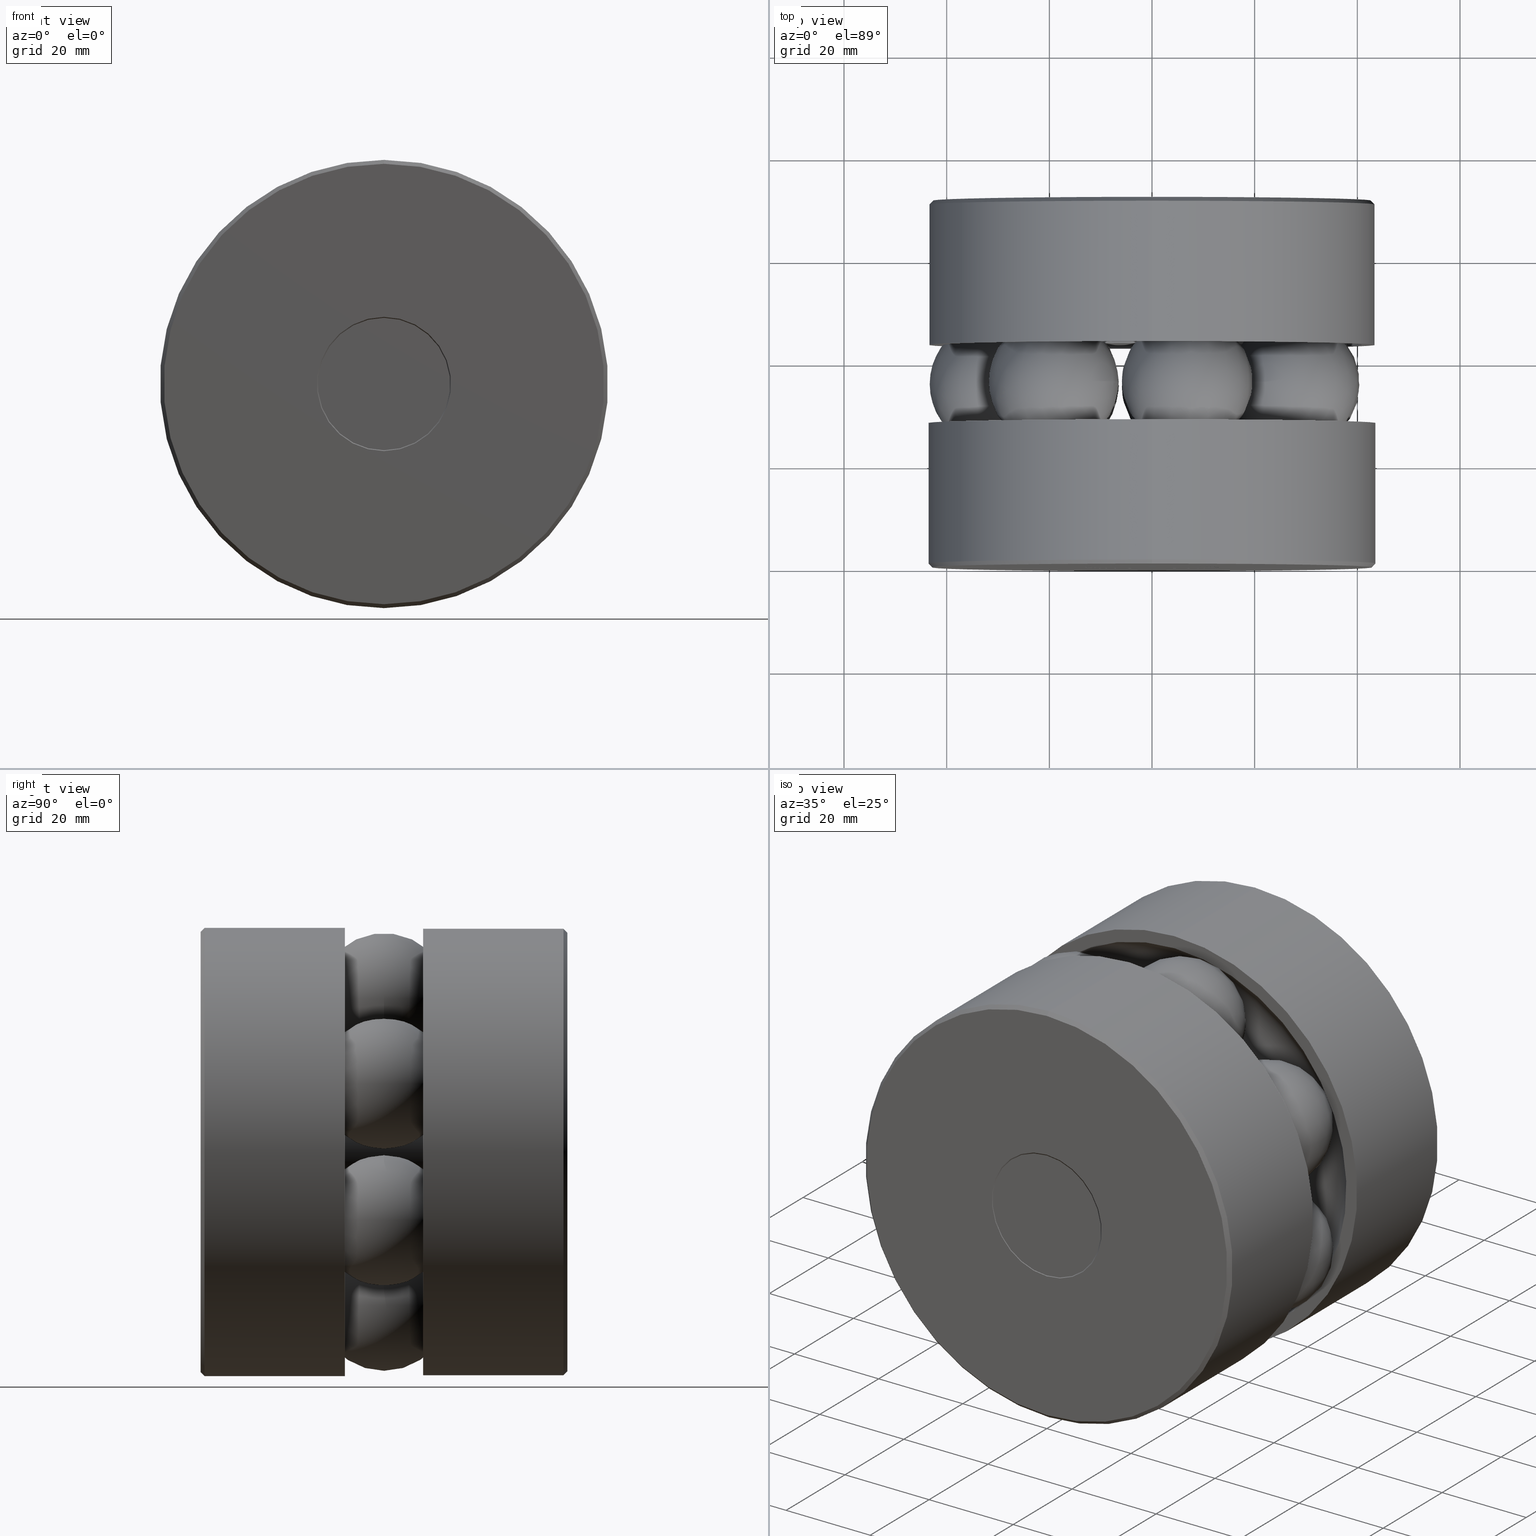
[diagram: canonical four-view strip — front | top / right | iso, engineering-drawing reading convention]
A machine part, canonical four-view strip (front | top / right | iso — engineering-drawing reading convention). The complete STEP part file that produces these views, byte-faithful:
ISO-10303-21;
HEADER;
FILE_DESCRIPTION (( 'STEP AP203' ),
    '1' );
FILE_NAME ('T-114RG_T-114RG-3007.step',
    '2016-02-04T16:15:54',
    ( '' ),
    ( '' ),
    'SwSTEP 2.0',
    'SolidWorks 2016',
    '' );
FILE_SCHEMA (( 'CONFIG_CONTROL_DESIGN' ));
ENDSEC;

DATA;
#1 = FACE_OUTER_BOUND ( 'NONE', #273, .T. ) ;
#2 = CIRCLE ( 'NONE', #429, 0.8100000000000009400 ) ;
#3 = CC_DESIGN_PERSON_AND_ORGANIZATION_ASSIGNMENT ( #330, #520, ( #384 ) ) ;
#4 =( CONVERSION_BASED_UNIT ( 'INCH', #363 ) LENGTH_UNIT ( ) NAMED_UNIT ( #469 ) );
#5 = MANIFOLD_SOLID_BREP ( 'Revolve3', #189 ) ;
#6 = CLOSED_SHELL ( 'NONE', ( #447 ) ) ;
#7 = EDGE_LOOP ( 'NONE', ( #322 ) ) ;
#8 = CARTESIAN_POINT ( 'NONE',  ( 0.0000000000000000000, 0.0000000000000000000, 0.0000000000000000000 ) ) ;
#9 = ADVANCED_FACE ( 'NONE', ( #1, #312 ), #64, .T. ) ;
#10 = PERSON_AND_ORGANIZATION ( #460, #439 ) ;
#11 =( LENGTH_UNIT ( ) NAMED_UNIT ( * ) SI_UNIT ( $, .METRE. ) );
#12 = CIRCLE ( 'NONE', #471, 1.609999999999999700 ) ;
#13 = ORIENTED_EDGE ( 'NONE', *, *, #27, .T. ) ;
#14 = AXIS2_PLACEMENT_3D ( 'NONE', #215, #247, #243 ) ;
#15 = ADVANCED_FACE ( 'NONE', ( ), #298, .T. ) ;
#16 = MANIFOLD_SOLID_BREP ( 'BALLS[1]', #342 ) ;
#17 = AXIS2_PLACEMENT_3D ( 'NONE', #279, #240, #239 ) ;
#18 = ADVANCED_FACE ( 'NONE', ( #200, #413 ), #170, .T. ) ;
#19 = VERTEX_POINT ( 'NONE', #35 ) ;
#20 = FACE_OUTER_BOUND ( 'NONE', #41, .T. ) ;
#21 = APPLICATION_CONTEXT ( 'configuration controlled 3d designs of mechanical parts and assemblies' ) ;
#22 = CARTESIAN_POINT ( 'NONE',  ( 0.0000000000000000000, 5.463695987328526400E-016, 0.5076249999999974400 ) ) ;
#23 = ORIENTED_EDGE ( 'NONE', *, *, #108, .T. ) ;
#24 = ORIENTED_EDGE ( 'NONE', *, *, #163, .T. ) ;
#25 = ORIENTED_EDGE ( 'NONE', *, *, #220, .T. ) ;
#26 = CARTESIAN_POINT ( 'NONE',  ( 0.0000000000000000000, 2.813000000000001100, 0.5146960678118629500 ) ) ;
#27 = EDGE_CURVE ( 'NONE', #235, #235, #402, .T. ) ;
#28 = PERSON_AND_ORGANIZATION ( #460, #439 ) ;
#29 = AXIS2_PLACEMENT_3D ( 'NONE', #521, #535, #497 ) ;
#30 = CYLINDRICAL_SURFACE ( 'NONE', #470, 0.1610000000000003400 ) ;
#31 = DIRECTION ( 'NONE',  ( -0.0000000000000000000, 1.000000000000000000, -0.0000000000000000000 ) ) ;
#32 = CARTESIAN_POINT ( 'NONE',  ( 0.0000000000000000000, 0.0000000000000000000, 0.0000000000000000000 ) ) ;
#33 = EDGE_LOOP ( 'NONE', ( #24 ) ) ;
#34 = APPROVAL_ROLE ( '' ) ;
#35 = CARTESIAN_POINT ( 'NONE',  ( 0.0000000000000000000, 1.706500000000000600, 1.712000000000000200 ) ) ;
#36 = CARTESIAN_POINT ( 'NONE',  ( 0.0000000000000000000, 1.706500000000000600, 0.1610000000000002800 ) ) ;
#37 = DIRECTION ( 'NONE',  ( -0.0000000000000000000, 1.000000000000000000, -0.0000000000000000000 ) ) ;
#38 = CARTESIAN_POINT ( 'NONE',  ( 0.0000000000000000000, 0.03000000000000010600, 1.719000000000000100 ) ) ;
#39 = VERTEX_POINT ( 'NONE', #50 ) ;
#40 = CIRCLE ( 'NONE', #261, 1.609999999999999700 ) ;
#41 = EDGE_LOOP ( 'NONE', ( #87 ) ) ;
#42 = CARTESIAN_POINT ( 'NONE',  ( 0.0000000000000000000, 1.106499999999999800, 1.609999999999999700 ) ) ;
#43 = EDGE_LOOP ( 'NONE', ( #147 ) ) ;
#44 = EDGE_LOOP ( 'NONE', ( #404 ) ) ;
#45 = PRODUCT_DEFINITION ( 'UNKNOWN', '', #203, #436 ) ;
#46 = DIRECTION ( 'NONE',  ( -0.0000000000000000000, 1.000000000000000000, -0.0000000000000000000 ) ) ;
#47 = CALENDAR_DATE ( 2016, 4, 2 ) ;
#48 = CARTESIAN_POINT ( 'NONE',  ( 0.0000000000000000000, 1.106500000000000000, 0.8100000000000008300 ) ) ;
#49 = FACE_OUTER_BOUND ( 'NONE', #255, .T. ) ;
#50 = CARTESIAN_POINT ( 'NONE',  ( 0.0000000000000000000, 2.459303932188134500, 0.1610000000000004200 ) ) ;
#51 = DIRECTION ( 'NONE',  ( 0.0000000000000000000, -1.000000000000000000, 0.0000000000000000000 ) ) ;
#52 = ORIENTED_EDGE ( 'NONE', *, *, #366, .F. ) ;
#53 = DATE_TIME_ROLE ( 'creation_date' ) ;
#54 = EDGE_LOOP ( 'NONE', ( #272 ) ) ;
#55 = DIRECTION ( 'NONE',  ( 0.0000000000000000000, 0.0000000000000000000, -1.000000000000000000 ) ) ;
#56 = ADVANCED_FACE ( 'NONE', ( ), #283, .T. ) ;
#57 = CARTESIAN_POINT ( 'NONE',  ( 0.0000000000000000000, 1.106500000000000300, 0.1610000000000001700 ) ) ;
#58 = AXIS2_PLACEMENT_3D ( 'NONE', #184, #37, #152 ) ;
#59 = PERSON_AND_ORGANIZATION_ROLE ( 'creator' ) ;
#60 = CARTESIAN_POINT ( 'NONE',  ( 0.0000000000000000000, 0.3516250000000003500, 0.1560000000000000300 ) ) ;
#61 = ADVANCED_FACE ( 'NONE', ( ), #84, .T. ) ;
#62 = VERTEX_POINT ( 'NONE', #77 ) ;
#63 = AXIS2_PLACEMENT_3D ( 'NONE', #211, #204, #202 ) ;
#64 = CONICAL_SURFACE ( 'NONE', #494, 1.682000000000000600, 0.7853981633974346200 ) ;
#65 = CARTESIAN_POINT ( 'NONE',  ( 0.0000000000000000000, 1.106499999999999600, 1.719000000000000100 ) ) ;
#66 = ORIENTED_EDGE ( 'NONE', *, *, #443, .T. ) ;
#67 = ORIENTED_EDGE ( 'NONE', *, *, #508, .F. ) ;
#68 = ORIENTED_EDGE ( 'NONE', *, *, #197, .F. ) ;
#69 = PLANE ( 'NONE',  #532 ) ;
#70 = EDGE_LOOP ( 'NONE', ( #356 ) ) ;
#71 = DATE_AND_TIME ( #194, #304 ) ;
#72 = CONICAL_SURFACE ( 'NONE', #250, 0.5076249999999979900, 0.7853981633974447300 ) ;
#73 = PLANE ( 'NONE',  #407 ) ;
#74 = EDGE_CURVE ( 'NONE', #423, #423, #516, .T. ) ;
#75 = CARTESIAN_POINT ( 'NONE',  ( 0.0000000000000000000, 2.782999999999999900, 1.712000000000000200 ) ) ;
#76 = AXIS2_PLACEMENT_3D ( 'NONE', #476, #464, #463 ) ;
#77 = CARTESIAN_POINT ( 'NONE',  ( 0.0000000000000000000, 0.3536960678118663000, 0.1610000000000000300 ) ) ;
#78 = ORIENTED_EDGE ( 'NONE', *, *, #421, .F. ) ;
#79 = DIRECTION ( 'NONE',  ( 0.0000000000000000000, 0.0000000000000000000, 1.000000000000000000 ) ) ;
#80 = ADVANCED_FACE ( 'NONE', ( #187, #501 ), #488, .F. ) ;
#81 = MANIFOLD_SOLID_BREP ( 'Revolve2[2]', #454 ) ;
#82 = CARTESIAN_POINT ( 'NONE',  ( 0.0000000000000000000, -9.698574145663359300E-018, 0.5146960678118623900 ) ) ;
#83 = VERTEX_POINT ( 'NONE', #102 ) ;
#84 = SPHERICAL_SURFACE ( 'NONE', #234, 0.5000000000000001100 ) ;
#85 = CARTESIAN_POINT ( 'NONE',  ( 0.0000000000000000000, -1.619248371186480700E-016, 1.689000000000000300 ) ) ;
#86 = DIRECTION ( 'NONE',  ( 0.6234898018587320400, 0.0000000000000000000, -0.7818314824680310200 ) ) ;
#87 = ORIENTED_EDGE ( 'NONE', *, *, #277, .F. ) ;
#88 = DIRECTION ( 'NONE',  ( 1.000000000000000000, 0.0000000000000000000, 0.0000000000000000000 ) ) ;
#89 = ORIENTED_EDGE ( 'NONE', *, *, #508, .T. ) ;
#90 = CARTESIAN_POINT ( 'NONE',  ( 0.0000000000000000000, 2.461375000000000300, 0.1560000000000003900 ) ) ;
#91 = EDGE_LOOP ( 'NONE', ( #25 ) ) ;
#92 = APPROVAL ( #524, 'UNSPECIFIED' ) ;
#93 = APPROVAL_DATE_TIME ( #205, #92 ) ;
#94 = FACE_OUTER_BOUND ( 'NONE', #236, .T. ) ;
#95 = DIRECTION ( 'NONE',  ( 0.0000000000000000000, 0.0000000000000000000, 1.000000000000000000 ) ) ;
#96 = EDGE_LOOP ( 'NONE', ( #182 ) ) ;
#97 = CARTESIAN_POINT ( 'NONE',  ( 0.0000000000000000000, 1.706500000000000600, 0.8100000000000009400 ) ) ;
#98 = DIRECTION ( 'NONE',  ( 0.0000000000000000000, 0.0000000000000000000, 1.000000000000000000 ) ) ;
#99 = DIRECTION ( 'NONE',  ( -0.0000000000000000000, 1.000000000000000000, -0.0000000000000000000 ) ) ;
#100 = CARTESIAN_POINT ( 'NONE',  ( 0.0000000000000000000, 5.463695987328526400E-016, 0.0000000000000000000 ) ) ;
#101 = CIRCLE ( 'NONE', #390, 0.5076249999999974400 ) ;
#102 = CARTESIAN_POINT ( 'NONE',  ( 0.0000000000000000000, 1.706500000000000600, 1.609999999999999700 ) ) ;
#103 = AXIS2_PLACEMENT_3D ( 'NONE', #230, #229, #218 ) ;
#104 = CLOSED_SHELL ( 'NONE', ( #326, #341, #525, #281, #496, #482, #208, #459 ) ) ;
#105 = DIRECTION ( 'NONE',  ( 0.0000000000000000000, 0.0000000000000000000, 1.000000000000000000 ) ) ;
#106 = APPROVAL_PERSON_ORGANIZATION ( #216, #92, #517 ) ;
#107 = CIRCLE ( 'NONE', #136, 1.712000000000000200 ) ;
#108 = EDGE_CURVE ( 'NONE', #83, #83, #40, .T. ) ;
#109 = CARTESIAN_POINT ( 'NONE',  ( 0.0000000000000000000, 2.813000000000000200, 0.5076249999999979900 ) ) ;
#110 = AXIS2_PLACEMENT_3D ( 'NONE', #491, #483, #493 ) ;
#111 = DIRECTION ( 'NONE',  ( 1.000000000000000000, 0.0000000000000000000, 0.0000000000000000000 ) ) ;
#112 = CARTESIAN_POINT ( 'NONE',  ( 0.0000000000000000000, 1.706500000000000600, 0.0000000000000000000 ) ) ;
#113 = CIRCLE ( 'NONE', #270, 1.712000000000000200 ) ;
#114 = ADVANCED_FACE ( 'NONE', ( ), #474, .T. ) ;
#115 = DIRECTION ( 'NONE',  ( 0.0000000000000000000, 0.0000000000000000000, 1.000000000000000000 ) ) ;
#116 = DIRECTION ( 'NONE',  ( -0.0000000000000000000, 1.000000000000000000, -0.0000000000000000000 ) ) ;
#117 = CC_DESIGN_APPROVAL ( #92, ( #45 ) ) ;
#118 = FACE_OUTER_BOUND ( 'NONE', #372, .T. ) ;
#119 = CARTESIAN_POINT ( 'NONE',  ( 0.0000000000000000000, 2.813000000000001100, 0.0000000000000000000 ) ) ;
#120 = DIRECTION ( 'NONE',  ( 0.0000000000000000000, 0.0000000000000000000, 1.000000000000000000 ) ) ;
#121 = DIRECTION ( 'NONE',  ( 0.0000000000000000000, 0.0000000000000000000, -1.000000000000000000 ) ) ;
#122 = CLOSED_SHELL ( 'NONE', ( #472 ) ) ;
#123 = ADVANCED_FACE ( 'NONE', ( #388, #157 ), #73, .T. ) ;
#124 = CARTESIAN_POINT ( 'NONE',  ( -1.210000000000000400, 1.406500000000000500, 0.0000000000000000000 ) ) ;
#125 = FACE_BOUND ( 'NONE', #442, .T. ) ;
#126 = DIRECTION ( 'NONE',  ( -0.7818314824680310200, 0.0000000000000000000, -0.6234898018587320400 ) ) ;
#127 = ORIENTED_EDGE ( 'NONE', *, *, #308, .F. ) ;
#128 = COORDINATED_UNIVERSAL_TIME_OFFSET ( 5, 0, .BEHIND. ) ;
#129 = ADVANCED_FACE ( 'NONE', ( #271, #20 ), #462, .T. ) ;
#130 = DIRECTION ( 'NONE',  ( 0.0000000000000000000, -0.0000000000000000000, -1.000000000000000000 ) ) ;
#131 = FACE_OUTER_BOUND ( 'NONE', #173, .T. ) ;
#132 = CARTESIAN_POINT ( 'NONE',  ( -1.712000000000000200, 1.706500000000000600, 0.0000000000000000000 ) ) ;
#133 = DIRECTION ( 'NONE',  ( 0.0000000000000000000, -1.000000000000000000, 0.0000000000000000000 ) ) ;
#134 = EDGE_LOOP ( 'NONE', ( #181 ) ) ;
#135 = EDGE_CURVE ( 'NONE', #515, #515, #2, .T. ) ;
#136 = AXIS2_PLACEMENT_3D ( 'NONE', #448, #440, #437 ) ;
#137 = CIRCLE ( 'NONE', #549, 1.719000000000000100 ) ;
#138 = DIRECTION ( 'NONE',  ( 0.0000000000000000000, 0.0000000000000000000, 1.000000000000000000 ) ) ;
#139 = EDGE_LOOP ( 'NONE', ( #466 ) ) ;
#140 = MANIFOLD_SOLID_BREP ( 'BALLS[6]', #6 ) ;
#141 = DIRECTION ( 'NONE',  ( -0.9009688679024219200, 0.0000000000000000000, -0.4338837391175524600 ) ) ;
#142 = DIRECTION ( 'NONE',  ( -0.0000000000000000000, 1.000000000000000000, -0.0000000000000000000 ) ) ;
#143 = CARTESIAN_POINT ( 'NONE',  ( 0.0000000000000000000, 1.706500000000000600, 0.0000000000000000000 ) ) ;
#144 = EDGE_LOOP ( 'NONE', ( #23 ) ) ;
#145 = CIRCLE ( 'NONE', #553, 0.5146960678118623900 ) ;
#146 = CC_DESIGN_PERSON_AND_ORGANIZATION_ASSIGNMENT ( #518, #59, ( #45 ) ) ;
#147 = ORIENTED_EDGE ( 'NONE', *, *, #551, .F. ) ;
#148 = EDGE_LOOP ( 'NONE', ( #354 ) ) ;
#149 = DATE_AND_TIME ( #264, #380 ) ;
#150 = FACE_OUTER_BOUND ( 'NONE', #455, .T. ) ;
#151 = ORIENTED_EDGE ( 'NONE', *, *, #334, .F. ) ;
#152 = DIRECTION ( 'NONE',  ( 0.0000000000000000000, 0.0000000000000000000, 1.000000000000000000 ) ) ;
#153 = EDGE_LOOP ( 'NONE', ( #263 ) ) ;
#154 = PLANE ( 'NONE',  #362 ) ;
#155 = CARTESIAN_POINT ( 'NONE',  ( 0.0000000000000000000, 2.813000000000000200, 1.682000000000000600 ) ) ;
#156 = VERTEX_POINT ( 'NONE', #36 ) ;
#157 = FACE_OUTER_BOUND ( 'NONE', #252, .T. ) ;
#158 = CARTESIAN_POINT ( 'NONE',  ( -0.5146960678118623900, -8.581170563215571700E-017, 0.0000000000000000000 ) ) ;
#159 = ORIENTED_EDGE ( 'NONE', *, *, #468, .T. ) ;
#160 = ORIENTED_EDGE ( 'NONE', *, *, #249, .T. ) ;
#161 = ORIENTED_EDGE ( 'NONE', *, *, #334, .T. ) ;
#162 = PERSON_AND_ORGANIZATION ( #460, #439 ) ;
#163 = EDGE_CURVE ( 'NONE', #411, #411, #258, .T. ) ;
#164 = FACE_OUTER_BOUND ( 'NONE', #43, .T. ) ;
#165 = CLOSED_SHELL ( 'NONE', ( #56 ) ) ;
#166 = ADVANCED_FACE ( 'NONE', ( #364, #131 ), #69, .T. ) ;
#167 = CARTESIAN_POINT ( 'NONE',  ( 0.0000000000000000000, 0.0000000000000000000, 0.0000000000000000000 ) ) ;
#168 = CARTESIAN_POINT ( 'NONE',  ( 0.0000000000000000000, 1.406500000000000500, 0.0000000000000000000 ) ) ;
#169 = VERTEX_POINT ( 'NONE', #57 ) ;
#170 = CONICAL_SURFACE ( 'NONE', #522, 0.1560000000000000300, 0.7853981633974447300 ) ;
#171 = DIRECTION ( 'NONE',  ( 0.0000000000000000000, 0.0000000000000000000, 1.000000000000000000 ) ) ;
#172 = EDGE_LOOP ( 'NONE', ( #160 ) ) ;
#173 = EDGE_LOOP ( 'NONE', ( #190 ) ) ;
#174 = ORIENTED_EDGE ( 'NONE', *, *, #443, .F. ) ;
#175 = DIRECTION ( 'NONE',  ( -0.0000000000000000000, 1.000000000000000000, 0.0000000000000000000 ) ) ;
#176 = CC_DESIGN_DATE_AND_TIME_ASSIGNMENT ( #71, #53, ( #45 ) ) ;
#177 = EDGE_LOOP ( 'NONE', ( #66 ) ) ;
#178 = ORIENTED_EDGE ( 'NONE', *, *, #108, .F. ) ;
#179 = LOCAL_TIME ( 11, 15, 54.00000000000000000, #291 ) ;
#180 = CIRCLE ( 'NONE', #495, 0.8100000000000008300 ) ;
#181 = ORIENTED_EDGE ( 'NONE', *, *, #135, .T. ) ;
#182 = ORIENTED_EDGE ( 'NONE', *, *, #398, .T. ) ;
#183 = DIRECTION ( 'NONE',  ( 0.0000000000000000000, 0.0000000000000000000, 1.000000000000000000 ) ) ;
#184 = CARTESIAN_POINT ( 'NONE',  ( 0.0000000000000000000, 2.813000000000000200, 0.0000000000000000000 ) ) ;
#185 = DIRECTION ( 'NONE',  ( -0.0000000000000000000, 1.000000000000000000, -0.0000000000000000000 ) ) ;
#186 = VERTEX_POINT ( 'NONE', #82 ) ;
#187 = FACE_OUTER_BOUND ( 'NONE', #134, .T. ) ;
#188 = AXIS2_PLACEMENT_3D ( 'NONE', #241, #199, #193 ) ;
#189 = CLOSED_SHELL ( 'NONE', ( #533 ) ) ;
#190 = ORIENTED_EDGE ( 'NONE', *, *, #135, .F. ) ;
#191 = DIRECTION ( 'NONE',  ( -0.0000000000000000000, 1.000000000000000000, -0.0000000000000000000 ) ) ;
#192 = ADVANCED_BREP_SHAPE_REPRESENTATION ( 'T-114RG_T-114RG-3007', ( #392, #81, #475, #5, #16, #238, #339, #434, #523, #140, #536 ), #438 ) ;
#193 = DIRECTION ( 'NONE',  ( 0.0000000000000000000, 0.0000000000000000000, 1.000000000000000000 ) ) ;
#194 = CALENDAR_DATE ( 2016, 4, 2 ) ;
#195 = CIRCLE ( 'NONE', #278, 1.719000000000000100 ) ;
#196 = CARTESIAN_POINT ( 'NONE',  ( -0.7544226602490661200, 1.406500000000000500, 0.9460160937863179000 ) ) ;
#197 = EDGE_CURVE ( 'NONE', #297, #297, #245, .T. ) ;
#198 = AXIS2_PLACEMENT_3D ( 'NONE', #412, #452, #461 ) ;
#199 = DIRECTION ( 'NONE',  ( -0.0000000000000000000, 1.000000000000000000, 0.0000000000000000000 ) ) ;
#200 = FACE_OUTER_BOUND ( 'NONE', #54, .T. ) ;
#201 = DIRECTION ( 'NONE',  ( -0.4338837391175524600, 0.0000000000000000000, 0.9009688679024218100 ) ) ;
#202 = DIRECTION ( 'NONE',  ( 0.0000000000000000000, 0.0000000000000000000, 1.000000000000000000 ) ) ;
#203 = PRODUCT_DEFINITION_FORMATION_WITH_SPECIFIED_SOURCE ( 'ANY', '', #384, .NOT_KNOWN. ) ;
#204 = DIRECTION ( 'NONE',  ( -0.0000000000000000000, 1.000000000000000000, -0.0000000000000000000 ) ) ;
#205 = DATE_AND_TIME ( #318, #426 ) ;
#206 = AXIS2_PLACEMENT_3D ( 'NONE', #458, #301, #292 ) ;
#207 = FACE_OUTER_BOUND ( 'NONE', #457, .T. ) ;
#208 = ADVANCED_FACE ( 'NONE', ( #550, #348 ), #375, .F. ) ;
#209 =( NAMED_UNIT ( * ) PLANE_ANGLE_UNIT ( ) SI_UNIT ( $, .RADIAN. ) );
#210 = EDGE_LOOP ( 'NONE', ( #78 ) ) ;
#211 = CARTESIAN_POINT ( 'NONE',  ( 0.0000000000000000000, 1.706500000000000600, 0.0000000000000000000 ) ) ;
#212 = SHAPE_DEFINITION_REPRESENTATION ( #391, #192 ) ;
#213 = CARTESIAN_POINT ( 'NONE',  ( -0.5146960678118629500, 2.813000000000001100, 0.0000000000000000000 ) ) ;
#214 = PLANE ( 'NONE',  #242 ) ;
#215 = CARTESIAN_POINT ( 'NONE',  ( 0.0000000000000000000, 2.813000000000000200, 0.0000000000000000000 ) ) ;
#216 = PERSON_AND_ORGANIZATION ( #460, #439 ) ;
#217 = FACE_BOUND ( 'NONE', #33, .T. ) ;
#218 = DIRECTION ( 'NONE',  ( -0.9009688679024157000, 0.0000000000000000000, 0.4338837391175651100 ) ) ;
#219 = DIRECTION ( 'NONE',  ( 0.0000000000000000000, 0.0000000000000000000, 1.000000000000000000 ) ) ;
#220 = EDGE_CURVE ( 'NONE', #186, #186, #145, .T. ) ;
#221 = EDGE_LOOP ( 'NONE', ( #528 ) ) ;
#222 = AXIS2_PLACEMENT_3D ( 'NONE', #449, #433, #425 ) ;
#223 = DIRECTION ( 'NONE',  ( -0.0000000000000000000, 1.000000000000000000, -0.0000000000000000000 ) ) ;
#224 = FACE_OUTER_BOUND ( 'NONE', #417, .T. ) ;
#225 = DATE_TIME_ROLE ( 'classification_date' ) ;
#226 = CARTESIAN_POINT ( 'NONE',  ( 0.0000000000000000000, 0.03000000000000010600, 0.0000000000000000000 ) ) ;
#227 = EDGE_LOOP ( 'NONE', ( #89 ) ) ;
#228 = APPROVAL_DATE_TIME ( #340, #428 ) ;
#229 = DIRECTION ( 'NONE',  ( 0.4338837391175651100, -0.0000000000000000000, 0.9009688679024157000 ) ) ;
#230 = CARTESIAN_POINT ( 'NONE',  ( 1.090172330161923300, 1.406500000000000500, -0.5249993243322540500 ) ) ;
#231 = ORIENTED_EDGE ( 'NONE', *, *, #478, .F. ) ;
#232 = CIRCLE ( 'NONE', #76, 0.1610000000000000300 ) ;
#233 = APPROVAL ( #513, 'UNSPECIFIED' ) ;
#234 = AXIS2_PLACEMENT_3D ( 'NONE', #323, #201, #141 ) ;
#235 = VERTEX_POINT ( 'NONE', #155 ) ;
#236 = EDGE_LOOP ( 'NONE', ( #502 ) ) ;
#237 = APPROVAL_PERSON_ORGANIZATION ( #10, #428, #34 ) ;
#238 = MANIFOLD_SOLID_BREP ( 'BALLS[2]', #165 ) ;
#239 = DIRECTION ( 'NONE',  ( 0.0000000000000000000, 0.0000000000000000000, 1.000000000000000000 ) ) ;
#240 = DIRECTION ( 'NONE',  ( -0.0000000000000000000, 1.000000000000000000, 0.0000000000000000000 ) ) ;
#241 = CARTESIAN_POINT ( 'NONE',  ( -0.8100000000000008300, 1.106500000000000300, 0.0000000000000000000 ) ) ;
#242 = AXIS2_PLACEMENT_3D ( 'NONE', #213, #175, #171 ) ;
#243 = DIRECTION ( 'NONE',  ( 0.0000000000000000000, 0.0000000000000000000, 1.000000000000000000 ) ) ;
#244 = PLANE ( 'NONE',  #17 ) ;
#245 = CIRCLE ( 'NONE', #510, 1.689000000000000300 ) ;
#246 = PLANE ( 'NONE',  #188 ) ;
#247 = DIRECTION ( 'NONE',  ( -0.0000000000000000000, 1.000000000000000000, -0.0000000000000000000 ) ) ;
#248 = EDGE_LOOP ( 'NONE', ( #161 ) ) ;
#249 = EDGE_CURVE ( 'NONE', #62, #62, #232, .T. ) ;
#250 = AXIS2_PLACEMENT_3D ( 'NONE', #414, #410, #416 ) ;
#251 = SPHERICAL_SURFACE ( 'NONE', #527, 0.5000000000000001100 ) ;
#252 = EDGE_LOOP ( 'NONE', ( #67 ) ) ;
#253 = ADVANCED_FACE ( 'NONE', ( #118, #331 ), #427, .F. ) ;
#254 = PERSON_AND_ORGANIZATION_ROLE ( 'classification_officer' ) ;
#255 = EDGE_LOOP ( 'NONE', ( #403 ) ) ;
#256 = ORIENTED_EDGE ( 'NONE', *, *, #27, .F. ) ;
#257 = DIRECTION ( 'NONE',  ( 0.6234898018587431400, 0.0000000000000000000, 0.7818314824680221400 ) ) ;
#258 = CIRCLE ( 'NONE', #379, 0.1560000000000003900 ) ;
#259 = DIRECTION ( 'NONE',  ( 0.0000000000000000000, 0.0000000000000000000, 1.000000000000000000 ) ) ;
#260 = CC_DESIGN_APPROVAL ( #233, ( #203 ) ) ;
#261 = AXIS2_PLACEMENT_3D ( 'NONE', #112, #46, #95 ) ;
#262 = DIRECTION ( 'NONE',  ( -0.0000000000000000000, 1.000000000000000000, -0.0000000000000000000 ) ) ;
#263 = ORIENTED_EDGE ( 'NONE', *, *, #220, .F. ) ;
#264 = CALENDAR_DATE ( 2016, 4, 2 ) ;
#265 = FACE_BOUND ( 'NONE', #333, .T. ) ;
#266 = CARTESIAN_POINT ( 'NONE',  ( 0.0000000000000000000, 1.106499999999999800, 0.0000000000000000000 ) ) ;
#267 = DIRECTION ( 'NONE',  ( 0.7818314824680221400, 0.0000000000000000000, -0.6234898018587431400 ) ) ;
#268 = CARTESIAN_POINT ( 'NONE',  ( -0.7544226602490794500, 1.406500000000000500, -0.9460160937863071300 ) ) ;
#269 = VERTEX_POINT ( 'NONE', #38 ) ;
#270 = AXIS2_PLACEMENT_3D ( 'NONE', #143, #142, #138 ) ;
#271 = FACE_OUTER_BOUND ( 'NONE', #227, .T. ) ;
#272 = ORIENTED_EDGE ( 'NONE', *, *, #551, .T. ) ;
#273 = EDGE_LOOP ( 'NONE', ( #303 ) ) ;
#274 = PERSON_AND_ORGANIZATION ( #460, #439 ) ;
#275 = CONICAL_SURFACE ( 'NONE', #309, 1.719000000000000100, 0.7853981633974430600 ) ;
#276 = EDGE_LOOP ( 'NONE', ( #256 ) ) ;
#277 = EDGE_CURVE ( 'NONE', #500, #500, #107, .T. ) ;
#278 = AXIS2_PLACEMENT_3D ( 'NONE', #389, #387, #385 ) ;
#279 = CARTESIAN_POINT ( 'NONE',  ( -1.719000000000000100, 1.106499999999999800, 0.0000000000000000000 ) ) ;
#280 = ADVANCED_FACE ( 'NONE', ( #450 ), #480, .T. ) ;
#281 = ADVANCED_FACE ( 'NONE', ( #530, #320 ), #419, .F. ) ;
#282 = VERTEX_POINT ( 'NONE', #60 ) ;
#283 = SPHERICAL_SURFACE ( 'NONE', #206, 0.5000000000000001100 ) ;
#284 = DIRECTION ( 'NONE',  ( 0.0000000000000000000, 0.0000000000000000000, 1.000000000000000000 ) ) ;
#285 = DIRECTION ( 'NONE',  ( -0.0000000000000000000, 1.000000000000000000, -0.0000000000000000000 ) ) ;
#286 = UNCERTAINTY_MEASURE_WITH_UNIT (LENGTH_MEASURE( 1.000000000000000100E-005 ), #4, 'distance_accuracy_value', 'NONE');
#287 = CLOSED_SHELL ( 'NONE', ( #15 ) ) ;
#288 = CC_DESIGN_PERSON_AND_ORGANIZATION_ASSIGNMENT ( #274, #343, ( #203 ) ) ;
#289 = CARTESIAN_POINT ( 'NONE',  ( 0.0000000000000000000, 1.106500000000000000, 0.0000000000000000000 ) ) ;
#290 = AXIS2_PLACEMENT_3D ( 'NONE', #168, #185, #120 ) ;
#291 = COORDINATED_UNIVERSAL_TIME_OFFSET ( 5, 0, .BEHIND. ) ;
#292 = DIRECTION ( 'NONE',  ( -0.2225209339563182200, 0.0000000000000000000, -0.9749279121818227300 ) ) ;
#293 = FACE_OUTER_BOUND ( 'NONE', #96, .T. ) ;
#294 = DIRECTION ( 'NONE',  ( -0.0000000000000000000, 1.000000000000000000, -0.0000000000000000000 ) ) ;
#295 = APPROVAL_STATUS ( 'not_yet_approved' ) ;
#296 = ADVANCED_FACE ( 'NONE', ( #217, #539 ), #72, .T. ) ;
#297 = VERTEX_POINT ( 'NONE', #85 ) ;
#298 = SPHERICAL_SURFACE ( 'NONE', #544, 0.5000000000000001100 ) ;
#299 = CLOSED_SHELL ( 'NONE', ( #420, #280, #296, #422, #18 ) ) ;
#300 = AXIS2_PLACEMENT_3D ( 'NONE', #167, #191, #183 ) ;
#301 = DIRECTION ( 'NONE',  ( -0.9749279121818228400, 0.0000000000000000000, 0.2225209339563182200 ) ) ;
#302 = CARTESIAN_POINT ( 'NONE',  ( 0.0000000000000000000, 0.0000000000000000000, 0.0000000000000000000 ) ) ;
#303 = ORIENTED_EDGE ( 'NONE', *, *, #277, .T. ) ;
#304 = LOCAL_TIME ( 11, 15, 54.00000000000000000, #418 ) ;
#305 = CIRCLE ( 'NONE', #444, 0.1610000000000004200 ) ;
#306 = APPLICATION_CONTEXT ( 'configuration controlled 3d designs of mechanical parts and assemblies' ) ;
#307 = DIRECTION ( 'NONE',  ( 0.0000000000000000000, 0.0000000000000000000, 1.000000000000000000 ) ) ;
#308 = EDGE_CURVE ( 'NONE', #401, #401, #195, .T. ) ;
#309 = AXIS2_PLACEMENT_3D ( 'NONE', #373, #371, #376 ) ;
#310 = DIRECTION ( 'NONE',  ( 0.0000000000000000000, -1.000000000000000000, 0.0000000000000000000 ) ) ;
#311 = DIRECTION ( 'NONE',  ( 0.0000000000000000000, -0.0000000000000000000, -1.000000000000000000 ) ) ;
#312 = FACE_BOUND ( 'NONE', #276, .T. ) ;
#313 = DIRECTION ( 'NONE',  ( 0.0000000000000000000, -1.000000000000000000, 0.0000000000000000000 ) ) ;
#314 = DIRECTION ( 'NONE',  ( 0.0000000000000000000, 0.0000000000000000000, 1.000000000000000000 ) ) ;
#315 = MECHANICAL_CONTEXT ( 'NONE', #306, 'mechanical' ) ;
#316 = DIRECTION ( 'NONE',  ( -0.0000000000000000000, 1.000000000000000000, -0.0000000000000000000 ) ) ;
#317 = ORIENTED_EDGE ( 'NONE', *, *, #74, .F. ) ;
#318 = CALENDAR_DATE ( 2016, 4, 2 ) ;
#319 = CC_DESIGN_PERSON_AND_ORGANIZATION_ASSIGNMENT ( #162, #435, ( #203 ) ) ;
#320 = FACE_OUTER_BOUND ( 'NONE', #153, .T. ) ;
#321 = CARTESIAN_POINT ( 'NONE',  ( 0.0000000000000000000, 2.459303932188134500, 0.0000000000000000000 ) ) ;
#322 = ORIENTED_EDGE ( 'NONE', *, *, #74, .T. ) ;
#323 = CARTESIAN_POINT ( 'NONE',  ( 1.090172330161930800, 1.406500000000000500, 0.5249993243322389500 ) ) ;
#324 = PLANE ( 'NONE',  #424 ) ;
#325 = CIRCLE ( 'NONE', #328, 0.5146960678118629500 ) ;
#326 = ADVANCED_FACE ( 'NONE', ( #441, #207 ), #408, .T. ) ;
#327 = CARTESIAN_POINT ( 'NONE',  ( -0.5076249999999974400, 2.731847993664263200E-016, 0.0000000000000000000 ) ) ;
#328 = AXIS2_PLACEMENT_3D ( 'NONE', #119, #116, #115 ) ;
#329 = ORIENTED_EDGE ( 'NONE', *, *, #531, .T. ) ;
#330 = PERSON_AND_ORGANIZATION ( #460, #439 ) ;
#331 = FACE_BOUND ( 'NONE', #44, .T. ) ;
#332 = CARTESIAN_POINT ( 'NONE',  ( 0.2692503300871291700, 1.406500000000000500, -1.179662773740009600 ) ) ;
#333 = EDGE_LOOP ( 'NONE', ( #174 ) ) ;
#334 = EDGE_CURVE ( 'NONE', #282, #282, #509, .T. ) ;
#335 = AXIS2_PLACEMENT_3D ( 'NONE', #370, #361, #358 ) ;
#336 = CARTESIAN_POINT ( 'NONE',  ( 0.0000000000000000000, 0.3516250000000003500, 0.0000000000000000000 ) ) ;
#337 = FACE_OUTER_BOUND ( 'NONE', #547, .T. ) ;
#338 = DIRECTION ( 'NONE',  ( 0.0000000000000000000, 0.0000000000000000000, 1.000000000000000000 ) ) ;
#339 = MANIFOLD_SOLID_BREP ( 'BALLS[3]', #432 ) ;
#340 = DATE_AND_TIME ( #446, #548 ) ;
#341 = ADVANCED_FACE ( 'NONE', ( #519, #94 ), #275, .T. ) ;
#342 = CLOSED_SHELL ( 'NONE', ( #114 ) ) ;
#343 = PERSON_AND_ORGANIZATION_ROLE ( 'creator' ) ;
#344 = DIRECTION ( 'NONE',  ( -0.2225209339563049800, 0.0000000000000000000, 0.9749279121818258400 ) ) ;
#345 = DIRECTION ( 'NONE',  ( -0.0000000000000000000, 1.000000000000000000, -0.0000000000000000000 ) ) ;
#346 = CARTESIAN_POINT ( 'NONE',  ( 0.0000000000000000000, 1.106500000000000300, 0.0000000000000000000 ) ) ;
#347 = DIRECTION ( 'NONE',  ( -0.0000000000000000000, 1.000000000000000000, -0.0000000000000000000 ) ) ;
#348 = FACE_OUTER_BOUND ( 'NONE', #210, .T. ) ;
#349 = DIRECTION ( 'NONE',  ( 0.0000000000000000000, -1.000000000000000000, 0.0000000000000000000 ) ) ;
#350 = CARTESIAN_POINT ( 'NONE',  ( 0.0000000000000000000, 0.0000000000000000000, 0.0000000000000000000 ) ) ;
#351 = SECURITY_CLASSIFICATION ( '', '', #499 ) ;
#352 = DIRECTION ( 'NONE',  ( 0.0000000000000000000, 0.0000000000000000000, 1.000000000000000000 ) ) ;
#353 = AXIS2_PLACEMENT_3D ( 'NONE', #196, #126, #86 ) ;
#354 = ORIENTED_EDGE ( 'NONE', *, *, #531, .F. ) ;
#355 = DIRECTION ( 'NONE',  ( 0.9749279121818258400, -0.0000000000000000000, 0.2225209339563049600 ) ) ;
#356 = ORIENTED_EDGE ( 'NONE', *, *, #478, .T. ) ;
#357 = SPHERICAL_SURFACE ( 'NONE', #103, 0.5000000000000001100 ) ;
#358 = DIRECTION ( 'NONE',  ( 0.0000000000000000000, 0.0000000000000000000, 1.000000000000000000 ) ) ;
#359 = EDGE_LOOP ( 'NONE', ( #178 ) ) ;
#360 = EDGE_LOOP ( 'NONE', ( #231 ) ) ;
#361 = DIRECTION ( 'NONE',  ( -0.0000000000000000000, 1.000000000000000000, -0.0000000000000000000 ) ) ;
#362 = AXIS2_PLACEMENT_3D ( 'NONE', #158, #133, #130 ) ;
#363 = LENGTH_MEASURE_WITH_UNIT ( LENGTH_MEASURE( 0.02539999999999999900 ), #11 );
#364 = FACE_BOUND ( 'NONE', #70, .T. ) ;
#365 = DIRECTION ( 'NONE',  ( 0.0000000000000000000, -0.0000000000000000000, -1.000000000000000000 ) ) ;
#366 = EDGE_CURVE ( 'NONE', #169, #169, #492, .T. ) ;
#367 = FACE_BOUND ( 'NONE', #91, .T. ) ;
#368 = AXIS2_PLACEMENT_3D ( 'NONE', #409, #400, #395 ) ;
#369 = EDGE_LOOP ( 'NONE', ( #13 ) ) ;
#370 = CARTESIAN_POINT ( 'NONE',  ( 0.0000000000000000000, 0.3516250000000003500, 0.0000000000000000000 ) ) ;
#371 = DIRECTION ( 'NONE',  ( -0.0000000000000000000, 1.000000000000000000, -0.0000000000000000000 ) ) ;
#372 = EDGE_LOOP ( 'NONE', ( #329 ) ) ;
#373 = CARTESIAN_POINT ( 'NONE',  ( 0.0000000000000000000, 0.03000000000000010600, 0.0000000000000000000 ) ) ;
#374 = VERTEX_POINT ( 'NONE', #22 ) ;
#375 = TOROIDAL_SURFACE ( 'NONE', #29, 1.210000000000000400, 0.4999999999999998300 ) ;
#376 = DIRECTION ( 'NONE',  ( 0.0000000000000000000, 0.0000000000000000000, 1.000000000000000000 ) ) ;
#377 = CC_DESIGN_PERSON_AND_ORGANIZATION_ASSIGNMENT ( #28, #254, ( #351 ) ) ;
#378 = ORIENTED_EDGE ( 'NONE', *, *, #163, .F. ) ;
#379 = AXIS2_PLACEMENT_3D ( 'NONE', #546, #543, #542 ) ;
#380 = LOCAL_TIME ( 11, 15, 54.00000000000000000, #479 ) ;
#381 = FACE_OUTER_BOUND ( 'NONE', #221, .T. ) ;
#382 = ADVANCED_FACE ( 'NONE', ( #293, #397 ), #30, .F. ) ;
#383 = EDGE_LOOP ( 'NONE', ( #151 ) ) ;
#384 = PRODUCT ( 'T-114RG_T-114RG-3007', 'T-114RG_T-114RG-3007', '', ( #315 ) ) ;
#385 = DIRECTION ( 'NONE',  ( 0.0000000000000000000, 0.0000000000000000000, 1.000000000000000000 ) ) ;
#386 = VERTEX_POINT ( 'NONE', #42 ) ;
#387 = DIRECTION ( 'NONE',  ( -0.0000000000000000000, 1.000000000000000000, -0.0000000000000000000 ) ) ;
#388 = FACE_BOUND ( 'NONE', #144, .T. ) ;
#389 = CARTESIAN_POINT ( 'NONE',  ( 0.0000000000000000000, 1.106499999999999600, 0.0000000000000000000 ) ) ;
#390 = AXIS2_PLACEMENT_3D ( 'NONE', #100, #99, #98 ) ;
#391 = PRODUCT_DEFINITION_SHAPE ( 'NONE', 'NONE',  #45 ) ;
#392 = MANIFOLD_SOLID_BREP ( 'Revolve2[1]', #299 ) ;
#393 = DIRECTION ( 'NONE',  ( 0.0000000000000000000, 0.0000000000000000000, -1.000000000000000000 ) ) ;
#394 = ORIENTED_EDGE ( 'NONE', *, *, #366, .T. ) ;
#395 = DIRECTION ( 'NONE',  ( 0.0000000000000000000, 0.0000000000000000000, 1.000000000000000000 ) ) ;
#396 = APPROVAL_DATE_TIME ( #490, #233 ) ;
#397 = FACE_OUTER_BOUND ( 'NONE', #360, .T. ) ;
#398 = EDGE_CURVE ( 'NONE', #39, #39, #305, .T. ) ;
#399 = AXIS2_PLACEMENT_3D ( 'NONE', #346, #345, #338 ) ;
#400 = DIRECTION ( 'NONE',  ( -0.0000000000000000000, 1.000000000000000000, -0.0000000000000000000 ) ) ;
#401 = VERTEX_POINT ( 'NONE', #65 ) ;
#402 = CIRCLE ( 'NONE', #14, 1.682000000000000600 ) ;
#403 = ORIENTED_EDGE ( 'NONE', *, *, #308, .T. ) ;
#404 = ORIENTED_EDGE ( 'NONE', *, *, #398, .F. ) ;
#405 = CC_DESIGN_DATE_AND_TIME_ASSIGNMENT ( #149, #225, ( #351 ) ) ;
#406 = APPROVAL_PERSON_ORGANIZATION ( #506, #233, #431 ) ;
#407 = AXIS2_PLACEMENT_3D ( 'NONE', #132, #51, #365 ) ;
#408 = CYLINDRICAL_SURFACE ( 'NONE', #368, 1.719000000000000100 ) ;
#409 = CARTESIAN_POINT ( 'NONE',  ( 0.0000000000000000000, 0.0000000000000000000, 0.0000000000000000000 ) ) ;
#410 = DIRECTION ( 'NONE',  ( -0.0000000000000000000, 1.000000000000000000, -0.0000000000000000000 ) ) ;
#411 = VERTEX_POINT ( 'NONE', #90 ) ;
#412 = CARTESIAN_POINT ( 'NONE',  ( 0.0000000000000000000, -9.698574145663359300E-018, 0.0000000000000000000 ) ) ;
#413 = FACE_BOUND ( 'NONE', #383, .T. ) ;
#414 = CARTESIAN_POINT ( 'NONE',  ( 0.0000000000000000000, 2.813000000000000200, 0.0000000000000000000 ) ) ;
#415 = AXIS2_PLACEMENT_3D ( 'NONE', #124, #121, #111 ) ;
#416 = DIRECTION ( 'NONE',  ( 0.0000000000000000000, 0.0000000000000000000, 1.000000000000000000 ) ) ;
#417 = EDGE_LOOP ( 'NONE', ( #538 ) ) ;
#418 = COORDINATED_UNIVERSAL_TIME_OFFSET ( 5, 0, .BEHIND. ) ;
#419 = CONICAL_SURFACE ( 'NONE', #198, 0.5146960678118623900, 0.7853981633974428400 ) ;
#420 = ADVANCED_FACE ( 'NONE', ( #164 ), #324, .T. ) ;
#421 = EDGE_CURVE ( 'NONE', #487, #487, #180, .T. ) ;
#422 = ADVANCED_FACE ( 'NONE', ( #481, #150 ), #465, .T. ) ;
#423 = VERTEX_POINT ( 'NONE', #109 ) ;
#424 = AXIS2_PLACEMENT_3D ( 'NONE', #327, #313, #311 ) ;
#425 = DIRECTION ( 'NONE',  ( 0.0000000000000000000, 0.0000000000000000000, 1.000000000000000000 ) ) ;
#426 = LOCAL_TIME ( 11, 15, 54.00000000000000000, #529 ) ;
#427 = CONICAL_SURFACE ( 'NONE', #110, 0.1610000000000004200, 0.7853981633974429500 ) ;
#428 = APPROVAL ( #295, 'UNSPECIFIED' ) ;
#429 = AXIS2_PLACEMENT_3D ( 'NONE', #556, #555, #552 ) ;
#430 = CARTESIAN_POINT ( 'NONE',  ( 0.0000000000000000000, 2.813000000000000200, 0.0000000000000000000 ) ) ;
#431 = APPROVAL_ROLE ( '' ) ;
#432 = CLOSED_SHELL ( 'NONE', ( #61 ) ) ;
#433 = DIRECTION ( 'NONE',  ( -0.0000000000000000000, 1.000000000000000000, 0.0000000000000000000 ) ) ;
#434 = MANIFOLD_SOLID_BREP ( 'BALLS[4]', #122 ) ;
#435 = PERSON_AND_ORGANIZATION_ROLE ( 'design_supplier' ) ;
#436 = DESIGN_CONTEXT ( 'detailed design', #21, 'design' ) ;
#437 = DIRECTION ( 'NONE',  ( 0.0000000000000000000, 0.0000000000000000000, 1.000000000000000000 ) ) ;
#438 =( GEOMETRIC_REPRESENTATION_CONTEXT ( 3 ) GLOBAL_UNCERTAINTY_ASSIGNED_CONTEXT ( ( #286 ) ) GLOBAL_UNIT_ASSIGNED_CONTEXT ( ( #4, #209, #512 ) ) REPRESENTATION_CONTEXT ( 'NONE', 'WORKASPACE' ) );
#439 = ORGANIZATION ( 'UNSPECIFIED', 'UNSPECIFIED', '' ) ;
#440 = DIRECTION ( 'NONE',  ( -0.0000000000000000000, 1.000000000000000000, -0.0000000000000000000 ) ) ;
#441 = FACE_OUTER_BOUND ( 'NONE', #511, .T. ) ;
#442 = EDGE_LOOP ( 'NONE', ( #52 ) ) ;
#443 = EDGE_CURVE ( 'NONE', #386, #386, #12, .T. ) ;
#444 = AXIS2_PLACEMENT_3D ( 'NONE', #321, #316, #314 ) ;
#445 = FACE_BOUND ( 'NONE', #148, .T. ) ;
#446 = CALENDAR_DATE ( 2016, 4, 2 ) ;
#447 = ADVANCED_FACE ( 'NONE', ( ), #251, .T. ) ;
#448 = CARTESIAN_POINT ( 'NONE',  ( 0.0000000000000000000, 2.782999999999999900, 0.0000000000000000000 ) ) ;
#449 = CARTESIAN_POINT ( 'NONE',  ( 0.0000000000000000000, 2.813000000000001100, 0.0000000000000000000 ) ) ;
#450 = FACE_OUTER_BOUND ( 'NONE', #7, .T. ) ;
#451 = CC_DESIGN_APPROVAL ( #428, ( #351 ) ) ;
#452 = DIRECTION ( 'NONE',  ( 0.0000000000000000000, -1.000000000000000000, 0.0000000000000000000 ) ) ;
#453 = AXIS2_PLACEMENT_3D ( 'NONE', #32, #31, #79 ) ;
#454 = CLOSED_SHELL ( 'NONE', ( #253, #382, #166, #80, #123, #129, #9, #485 ) ) ;
#455 = EDGE_LOOP ( 'NONE', ( #378 ) ) ;
#456 = CIRCLE ( 'NONE', #63, 0.1610000000000002800 ) ;
#457 = EDGE_LOOP ( 'NONE', ( #127 ) ) ;
#458 = CARTESIAN_POINT ( 'NONE',  ( 0.2692503300871451600, 1.406500000000000500, 1.179662773740006100 ) ) ;
#459 = ADVANCED_FACE ( 'NONE', ( #49, #265 ), #244, .T. ) ;
#460 = PERSON ( 'UNSPECIFIED', 'UNSPECIFIED', 'UNSPECIFIED', ('UNSPECIFIED'), ('UNSPECIFIED'), ('UNSPECIFIED') ) ;
#461 = DIRECTION ( 'NONE',  ( 0.0000000000000000000, 0.0000000000000000000, -1.000000000000000000 ) ) ;
#462 = CYLINDRICAL_SURFACE ( 'NONE', #453, 1.712000000000000200 ) ;
#463 = DIRECTION ( 'NONE',  ( 0.0000000000000000000, 0.0000000000000000000, 1.000000000000000000 ) ) ;
#464 = DIRECTION ( 'NONE',  ( -0.0000000000000000000, 1.000000000000000000, -0.0000000000000000000 ) ) ;
#465 = CYLINDRICAL_SURFACE ( 'NONE', #498, 0.1560000000000001900 ) ;
#466 = ORIENTED_EDGE ( 'NONE', *, *, #197, .T. ) ;
#467 = APPLICATION_PROTOCOL_DEFINITION ( 'international standard', 'config_control_design', 1994, #306 ) ;
#468 = EDGE_CURVE ( 'NONE', #269, #269, #137, .T. ) ;
#469 = DIMENSIONAL_EXPONENTS ( 1.000000000000000000, 0.0000000000000000000, 0.0000000000000000000, 0.0000000000000000000, 0.0000000000000000000, 0.0000000000000000000, 0.0000000000000000000 ) ;
#470 = AXIS2_PLACEMENT_3D ( 'NONE', #350, #347, #352 ) ;
#471 = AXIS2_PLACEMENT_3D ( 'NONE', #266, #262, #259 ) ;
#472 = ADVANCED_FACE ( 'NONE', ( ), #357, .T. ) ;
#473 = VERTEX_POINT ( 'NONE', #26 ) ;
#474 = SPHERICAL_SURFACE ( 'NONE', #353, 0.5000000000000001100 ) ;
#475 = MANIFOLD_SOLID_BREP ( 'Revolve2[3]', #104 ) ;
#476 = CARTESIAN_POINT ( 'NONE',  ( 0.0000000000000000000, 0.3536960678118663000, 0.0000000000000000000 ) ) ;
#477 = CC_DESIGN_SECURITY_CLASSIFICATION ( #351, ( #203 ) ) ;
#478 = EDGE_CURVE ( 'NONE', #156, #156, #456, .T. ) ;
#479 = COORDINATED_UNIVERSAL_TIME_OFFSET ( 5, 0, .BEHIND. ) ;
#480 = PLANE ( 'NONE',  #222 ) ;
#481 = FACE_OUTER_BOUND ( 'NONE', #248, .T. ) ;
#482 = ADVANCED_FACE ( 'NONE', ( #381, #125 ), #246, .T. ) ;
#483 = DIRECTION ( 'NONE',  ( -0.0000000000000000000, 1.000000000000000000, -0.0000000000000000000 ) ) ;
#484 = DIRECTION ( 'NONE',  ( 0.0000000000000000000, 0.0000000000000000000, 1.000000000000000000 ) ) ;
#485 = ADVANCED_FACE ( 'NONE', ( #557, #445 ), #214, .T. ) ;
#486 = DIRECTION ( 'NONE',  ( -0.0000000000000000000, 1.000000000000000000, -0.0000000000000000000 ) ) ;
#487 = VERTEX_POINT ( 'NONE', #48 ) ;
#488 = TOROIDAL_SURFACE ( 'NONE', #290, 1.210000000000000400, 0.4999999999999996100 ) ;
#489 = CARTESIAN_POINT ( 'NONE',  ( 0.0000000000000000000, -9.698574145663359300E-018, 0.0000000000000000000 ) ) ;
#490 = DATE_AND_TIME ( #47, #179 ) ;
#491 = CARTESIAN_POINT ( 'NONE',  ( 0.0000000000000000000, 2.459303932188134500, 0.0000000000000000000 ) ) ;
#492 = CIRCLE ( 'NONE', #399, 0.1610000000000001700 ) ;
#493 = DIRECTION ( 'NONE',  ( 0.0000000000000000000, 0.0000000000000000000, 1.000000000000000000 ) ) ;
#494 = AXIS2_PLACEMENT_3D ( 'NONE', #430, #349, #393 ) ;
#495 = AXIS2_PLACEMENT_3D ( 'NONE', #289, #285, #284 ) ;
#496 = ADVANCED_FACE ( 'NONE', ( #545, #224 ), #534, .F. ) ;
#497 = DIRECTION ( 'NONE',  ( 0.0000000000000000000, 0.0000000000000000000, 1.000000000000000000 ) ) ;
#498 = AXIS2_PLACEMENT_3D ( 'NONE', #302, #294, #307 ) ;
#499 = SECURITY_CLASSIFICATION_LEVEL ( 'unclassified' ) ;
#500 = VERTEX_POINT ( 'NONE', #75 ) ;
#501 = FACE_OUTER_BOUND ( 'NONE', #359, .T. ) ;
#502 = ORIENTED_EDGE ( 'NONE', *, *, #468, .F. ) ;
#503 = DIRECTION ( 'NONE',  ( 0.0000000000000000000, 0.0000000000000000000, 1.000000000000000000 ) ) ;
#504 = EDGE_LOOP ( 'NONE', ( #317 ) ) ;
#505 = DIRECTION ( 'NONE',  ( -0.0000000000000000000, 1.000000000000000000, -0.0000000000000000000 ) ) ;
#506 = PERSON_AND_ORGANIZATION ( #460, #439 ) ;
#507 = PRODUCT_RELATED_PRODUCT_CATEGORY ( 'detail', '', ( #384 ) ) ;
#508 = EDGE_CURVE ( 'NONE', #19, #19, #113, .T. ) ;
#509 = CIRCLE ( 'NONE', #335, 0.1560000000000000300 ) ;
#510 = AXIS2_PLACEMENT_3D ( 'NONE', #514, #505, #503 ) ;
#511 = EDGE_LOOP ( 'NONE', ( #159 ) ) ;
#512 =( NAMED_UNIT ( * ) SI_UNIT ( $, .STERADIAN. ) SOLID_ANGLE_UNIT ( ) );
#513 = APPROVAL_STATUS ( 'not_yet_approved' ) ;
#514 = CARTESIAN_POINT ( 'NONE',  ( 0.0000000000000000000, -1.619248371186480700E-016, 0.0000000000000000000 ) ) ;
#515 = VERTEX_POINT ( 'NONE', #97 ) ;
#516 = CIRCLE ( 'NONE', #58, 0.5076249999999979900 ) ;
#517 = APPROVAL_ROLE ( '' ) ;
#518 = PERSON_AND_ORGANIZATION ( #460, #439 ) ;
#519 = FACE_BOUND ( 'NONE', #139, .T. ) ;
#520 = PERSON_AND_ORGANIZATION_ROLE ( 'design_owner' ) ;
#521 = CARTESIAN_POINT ( 'NONE',  ( 0.0000000000000000000, 1.406500000000000500, 0.0000000000000000000 ) ) ;
#522 = AXIS2_PLACEMENT_3D ( 'NONE', #336, #310, #55 ) ;
#523 = MANIFOLD_SOLID_BREP ( 'BALLS[5]', #287 ) ;
#524 = APPROVAL_STATUS ( 'not_yet_approved' ) ;
#525 = ADVANCED_FACE ( 'NONE', ( #367, #337 ), #154, .T. ) ;
#526 = SPHERICAL_SURFACE ( 'NONE', #415, 0.5000000000000001100 ) ;
#527 = AXIS2_PLACEMENT_3D ( 'NONE', #268, #267, #257 ) ;
#528 = ORIENTED_EDGE ( 'NONE', *, *, #421, .T. ) ;
#529 = COORDINATED_UNIVERSAL_TIME_OFFSET ( 5, 0, .BEHIND. ) ;
#530 = FACE_BOUND ( 'NONE', #172, .T. ) ;
#531 = EDGE_CURVE ( 'NONE', #473, #473, #325, .T. ) ;
#532 = AXIS2_PLACEMENT_3D ( 'NONE', #558, #541, #540 ) ;
#533 = ADVANCED_FACE ( 'NONE', ( ), #526, .T. ) ;
#534 = CYLINDRICAL_SURFACE ( 'NONE', #300, 0.1610000000000001200 ) ;
#535 = DIRECTION ( 'NONE',  ( -0.0000000000000000000, 1.000000000000000000, -0.0000000000000000000 ) ) ;
#536 = AXIS2_PLACEMENT_3D ( 'NONE', #8, #105, #88 ) ;
#537 = EDGE_LOOP ( 'NONE', ( #394 ) ) ;
#538 = ORIENTED_EDGE ( 'NONE', *, *, #249, .F. ) ;
#539 = FACE_OUTER_BOUND ( 'NONE', #504, .T. ) ;
#540 = DIRECTION ( 'NONE',  ( 0.0000000000000000000, -0.0000000000000000000, -1.000000000000000000 ) ) ;
#541 = DIRECTION ( 'NONE',  ( 0.0000000000000000000, -1.000000000000000000, 0.0000000000000000000 ) ) ;
#542 = DIRECTION ( 'NONE',  ( 0.0000000000000000000, 0.0000000000000000000, 1.000000000000000000 ) ) ;
#543 = DIRECTION ( 'NONE',  ( -0.0000000000000000000, 1.000000000000000000, -0.0000000000000000000 ) ) ;
#544 = AXIS2_PLACEMENT_3D ( 'NONE', #332, #355, #344 ) ;
#545 = FACE_OUTER_BOUND ( 'NONE', #537, .T. ) ;
#546 = CARTESIAN_POINT ( 'NONE',  ( 0.0000000000000000000, 2.461375000000000300, 0.0000000000000000000 ) ) ;
#547 = EDGE_LOOP ( 'NONE', ( #68 ) ) ;
#548 = LOCAL_TIME ( 11, 15, 54.00000000000000000, #128 ) ;
#549 = AXIS2_PLACEMENT_3D ( 'NONE', #226, #223, #219 ) ;
#550 = FACE_OUTER_BOUND ( 'NONE', #177, .T. ) ;
#551 = EDGE_CURVE ( 'NONE', #374, #374, #101, .T. ) ;
#552 = DIRECTION ( 'NONE',  ( 0.0000000000000000000, 0.0000000000000000000, 1.000000000000000000 ) ) ;
#553 = AXIS2_PLACEMENT_3D ( 'NONE', #489, #486, #484 ) ;
#554 = APPLICATION_PROTOCOL_DEFINITION ( 'international standard', 'config_control_design', 1994, #21 ) ;
#555 = DIRECTION ( 'NONE',  ( -0.0000000000000000000, 1.000000000000000000, -0.0000000000000000000 ) ) ;
#556 = CARTESIAN_POINT ( 'NONE',  ( 0.0000000000000000000, 1.706500000000000600, 0.0000000000000000000 ) ) ;
#557 = FACE_OUTER_BOUND ( 'NONE', #369, .T. ) ;
#558 = CARTESIAN_POINT ( 'NONE',  ( -0.8100000000000009400, 1.706500000000000600, 0.0000000000000000000 ) ) ;
ENDSEC;
END-ISO-10303-21;
